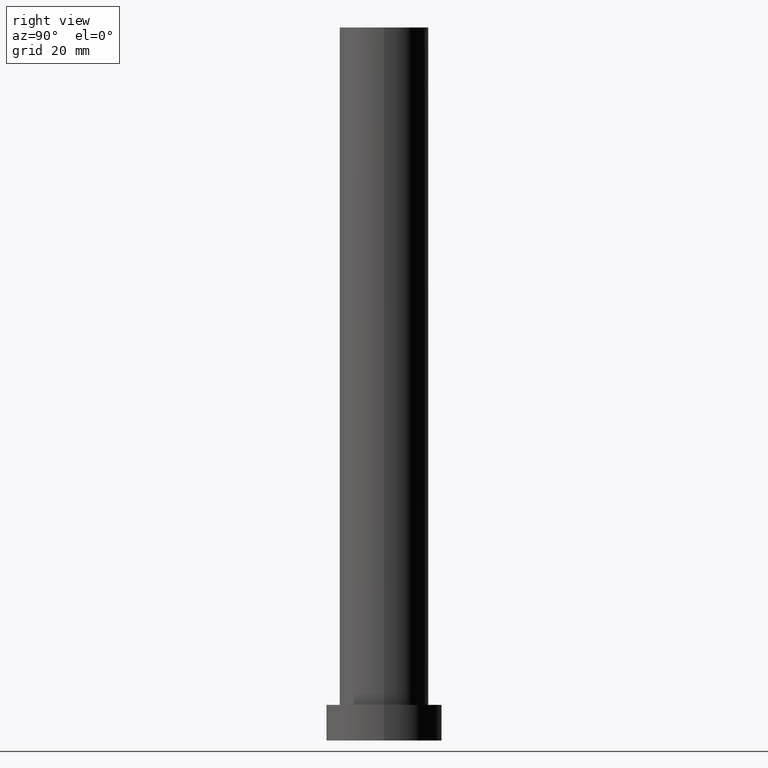
[diagram: clean part render]
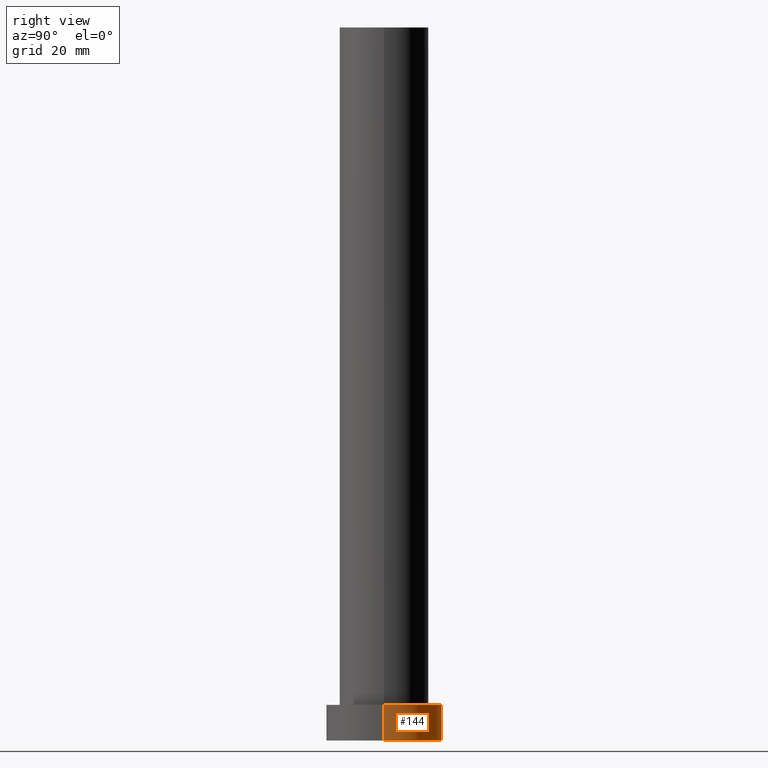
[diagram: same view with one face highlighted and labeled with its STEP entity id]
A machine part, right view. The second image highlights one B-rep face of the part: STEP entity #144.
In plain terms, the highlighted cylindrical surface (partial cylindrical patch) has radius 13 mm, axis along (-0, -0, -1).
Its self-contained STEP definition (entity closure, byte-faithful):
#2 = CARTESIAN_POINT ( 'NONE',  ( -13.00000000000000178, 0.000000000000000000, 0.000000000000000000 ) ) ;
#3 = ORIENTED_EDGE ( 'NONE', *, *, #37, .T. ) ;
#7 = AXIS2_PLACEMENT_3D ( 'NONE', #228, #109, #84 ) ;
#9 = EDGE_CURVE ( 'NONE', #28, #254, #181, .T. ) ;
#15 = CARTESIAN_POINT ( 'NONE',  ( 13.00000000000000178, 1.592040838891559293E-15, 0.000000000000000000 ) ) ;
#24 = VECTOR ( 'NONE', #168, 1000.000000000000000 ) ;
#28 = VERTEX_POINT ( 'NONE', #184 ) ;
#37 = EDGE_CURVE ( 'NONE', #58, #254, #249, .T. ) ;
#44 = DIRECTION ( 'NONE',  ( 0.000000000000000000, 0.000000000000000000, 1.000000000000000000 ) ) ;
#53 = EDGE_LOOP ( 'NONE', ( #151, #57, #3, #209 ) ) ;
#57 = ORIENTED_EDGE ( 'NONE', *, *, #187, .T. ) ;
#58 = VERTEX_POINT ( 'NONE', #15 ) ;
#66 = DIRECTION ( 'NONE',  ( -0.000000000000000000, -0.000000000000000000, -1.000000000000000000 ) ) ;
#68 = LINE ( 'NONE', #138, #146 ) ;
#84 = DIRECTION ( 'NONE',  ( 1.000000000000000000, 0.000000000000000000, 0.000000000000000000 ) ) ;
#95 = CARTESIAN_POINT ( 'NONE',  ( 0.000000000000000000, 0.000000000000000000, 8.000000000000000000 ) ) ;
#100 = DIRECTION ( 'NONE',  ( 1.000000000000000000, 0.000000000000000000, 0.000000000000000000 ) ) ;
#107 = CARTESIAN_POINT ( 'NONE',  ( -13.00000000000000178, 0.000000000000000000, 8.000000000000000000 ) ) ;
#109 = DIRECTION ( 'NONE',  ( 0.000000000000000000, 0.000000000000000000, 1.000000000000000000 ) ) ;
#129 = VERTEX_POINT ( 'NONE', #133 ) ;
#133 = CARTESIAN_POINT ( 'NONE',  ( 13.00000000000000178, 1.592040838891559293E-15, 8.000000000000000000 ) ) ;
#138 = CARTESIAN_POINT ( 'NONE',  ( 13.00000000000000178, 1.592040838891559293E-15, 8.000000000000000000 ) ) ;
#144 = ADVANCED_FACE ( 'NONE', ( #235 ), #255, .T. ) ;
#146 = VECTOR ( 'NONE', #221, 1000.000000000000000 ) ;
#151 = ORIENTED_EDGE ( 'NONE', *, *, #222, .F. ) ;
#168 = DIRECTION ( 'NONE',  ( -0.000000000000000000, -0.000000000000000000, -1.000000000000000000 ) ) ;
#181 = LINE ( 'NONE', #107, #24 ) ;
#184 = CARTESIAN_POINT ( 'NONE',  ( -13.00000000000000178, 0.000000000000000000, 8.000000000000000000 ) ) ;
#187 = EDGE_CURVE ( 'NONE', #129, #58, #68, .T. ) ;
#209 = ORIENTED_EDGE ( 'NONE', *, *, #9, .F. ) ;
#210 = CARTESIAN_POINT ( 'NONE',  ( 0.000000000000000000, 0.000000000000000000, 8.000000000000000000 ) ) ;
#215 = AXIS2_PLACEMENT_3D ( 'NONE', #210, #66, #218 ) ;
#218 = DIRECTION ( 'NONE',  ( -1.000000000000000000, 0.000000000000000000, 0.000000000000000000 ) ) ;
#221 = DIRECTION ( 'NONE',  ( -0.000000000000000000, -0.000000000000000000, -1.000000000000000000 ) ) ;
#222 = EDGE_CURVE ( 'NONE', #129, #28, #224, .T. ) ;
#224 = CIRCLE ( 'NONE', #252, 13.00000000000000178 ) ;
#228 = CARTESIAN_POINT ( 'NONE',  ( 0.000000000000000000, 0.000000000000000000, 0.000000000000000000 ) ) ;
#235 = FACE_OUTER_BOUND ( 'NONE', #53, .T. ) ;
#249 = CIRCLE ( 'NONE', #7, 13.00000000000000178 ) ;
#252 = AXIS2_PLACEMENT_3D ( 'NONE', #95, #44, #100 ) ;
#254 = VERTEX_POINT ( 'NONE', #2 ) ;
#255 = CYLINDRICAL_SURFACE ( 'NONE', #215, 13.00000000000000178 ) ;